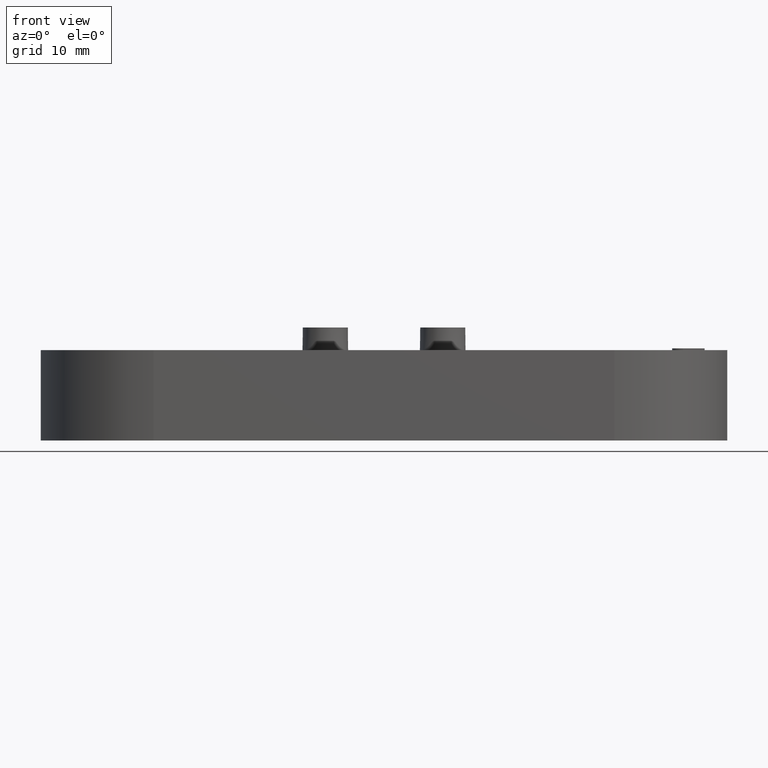
[diagram: clean part render]
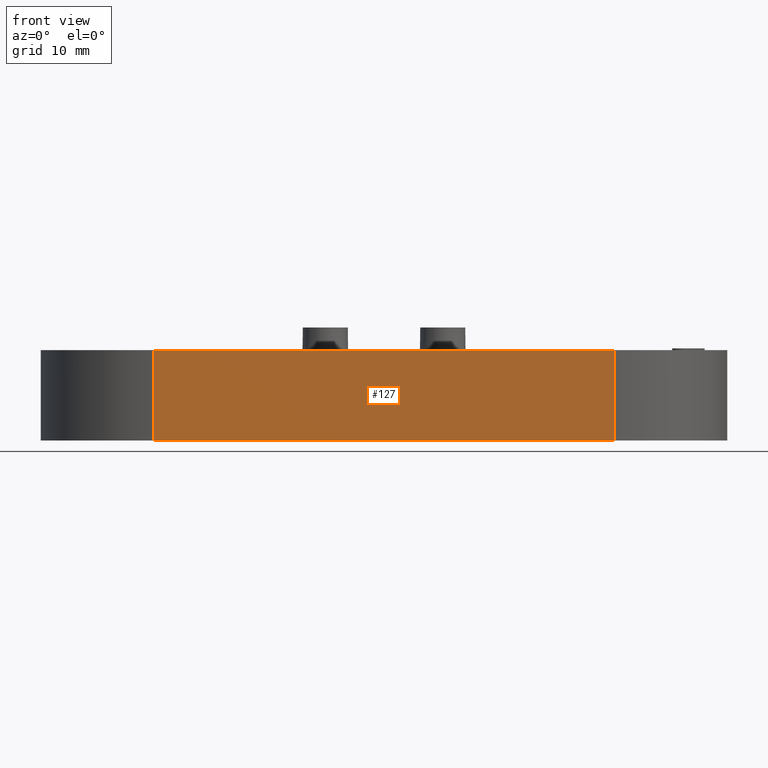
[diagram: same view with one face highlighted and labeled with its STEP entity id]
A machine part, front view. The second image highlights one B-rep face of the part: STEP entity #127.
In plain terms, the highlighted planar face has unit normal (0, 1, -0).
Its self-contained STEP definition (entity closure, byte-faithful):
#127 = ADVANCED_FACE( '', ( #436 ), #437, .F. );
#436 = FACE_OUTER_BOUND( '', #918, .T. );
#437 = PLANE( '', #919 );
#918 = EDGE_LOOP( '', ( #1864, #1865, #1866, #1867 ) );
#919 = AXIS2_PLACEMENT_3D( '', #1868, #1869, #1870 );
#1864 = ORIENTED_EDGE( '', *, *, #3039, .T. );
#1865 = ORIENTED_EDGE( '', *, *, #3408, .F. );
#1866 = ORIENTED_EDGE( '', *, *, #3251, .F. );
#1867 = ORIENTED_EDGE( '', *, *, #3407, .T. );
#1868 = CARTESIAN_POINT( '', ( 25.5000000000000, -12.5000000000000, 7.65378971138986E-016 ) );
#1869 = DIRECTION( '', ( 0.000000000000000, 1.00000000000000, -6.12303176911189E-017 ) );
#1870 = DIRECTION( '', ( 1.00000000000000, 0.000000000000000, 0.000000000000000 ) );
#3039 = EDGE_CURVE( '', #3607, #3605, #3608, .T. );
#3251 = EDGE_CURVE( '', #3991, #3993, #3994, .T. );
#3407 = EDGE_CURVE( '', #3991, #3607, #4284, .T. );
#3408 = EDGE_CURVE( '', #3993, #3605, #4285, .T. );
#3605 = VERTEX_POINT( '', #4541 );
#3607 = VERTEX_POINT( '', #4543 );
#3608 = LINE( '', #4544, #4545 );
#3991 = VERTEX_POINT( '', #5079 );
#3993 = VERTEX_POINT( '', #5081 );
#3994 = LINE( '', #5082, #5083 );
#4284 = LINE( '', #5518, #5519 );
#4285 = LINE( '', #5520, #5521 );
#4541 = CARTESIAN_POINT( '', ( -25.5000000000000, -12.5000000000000, 9.99999999999999 ) );
#4543 = CARTESIAN_POINT( '', ( 25.5000000000000, -12.5000000000000, 9.99999999999999 ) );
#4544 = CARTESIAN_POINT( '', ( 25.5000000000000, -12.5000000000000, 9.99999999999999 ) );
#4545 = VECTOR( '', #5917, 1000.00000000000 );
#5079 = CARTESIAN_POINT( '', ( 25.5000000000000, -12.5000000000000, 7.65378971138986E-016 ) );
#5081 = CARTESIAN_POINT( '', ( -25.5000000000000, -12.5000000000000, 7.65378971138986E-016 ) );
#5082 = CARTESIAN_POINT( '', ( 25.5000000000000, -12.5000000000000, 7.65378971138986E-016 ) );
#5083 = VECTOR( '', #6249, 1000.00000000000 );
#5518 = CARTESIAN_POINT( '', ( 25.5000000000000, -12.5000000000000, 7.65378971138986E-016 ) );
#5519 = VECTOR( '', #6425, 1000.00000000000 );
#5520 = CARTESIAN_POINT( '', ( -25.5000000000000, -12.5000000000000, 7.65378971138986E-016 ) );
#5521 = VECTOR( '', #6426, 1000.00000000000 );
#5917 = DIRECTION( '', ( -1.00000000000000, 0.000000000000000, 0.000000000000000 ) );
#6249 = DIRECTION( '', ( -1.00000000000000, 0.000000000000000, 0.000000000000000 ) );
#6425 = DIRECTION( '', ( 0.000000000000000, 6.12303176911189E-017, 1.00000000000000 ) );
#6426 = DIRECTION( '', ( 0.000000000000000, 6.12303176911189E-017, 1.00000000000000 ) );